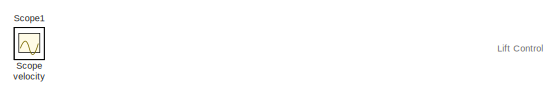
[diagram: root canvas - part 1/7, top left region]
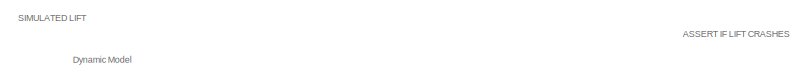
[diagram: root canvas - part 2/7, top right region]
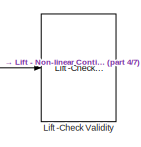
[diagram: root canvas - part 3/7, top right region]
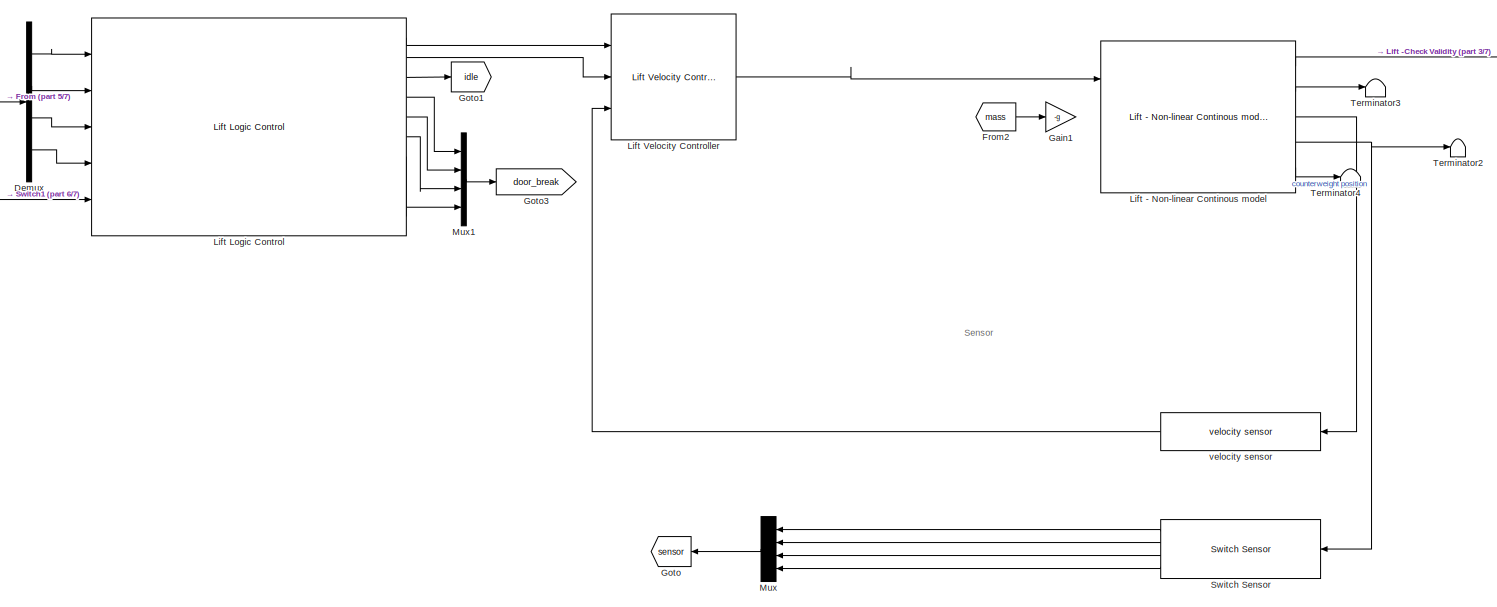
[diagram: root canvas - part 4/7, central region]
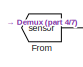
[diagram: root canvas - part 5/7, top left region]
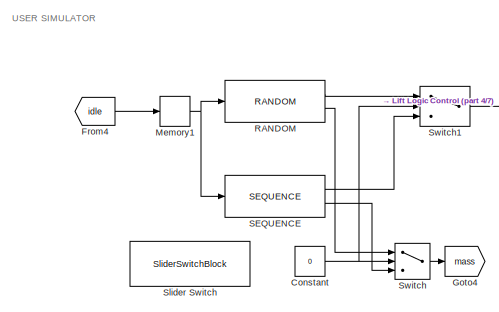
[diagram: root canvas - part 6/7, middle left region]
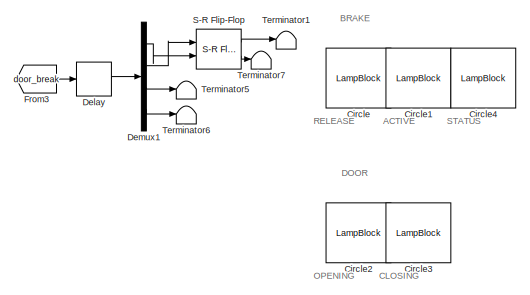
[diagram: root canvas - part 7/7, bottom right region]
MODEL slx_6e1b64482692
KIND model
CONFIG AbsTol = auto
CONFIG EnableMultiTasking = off
CONFIG FixedStep = auto
CONFIG MaxStep = auto
CONFIG MinStep = auto
CONFIG RelTol = 1e-3
CONFIG SampleTimeConstraint = Unconstrained
CONFIG SolverName = VariableStepAuto
CONFIG StartTime = 0.0
CONFIG StopTime = 600
BLOCK [LampBlock] Circle
  Icon = Circle
  LabelPosition = Hide
BLOCK [LampBlock] Circle1
  Icon = Circle
  LabelPosition = Hide
BLOCK [LampBlock] Circle2
  Icon = Circle
  LabelPosition = Hide
BLOCK [LampBlock] Circle3
  Icon = Circle
  LabelPosition = Hide
BLOCK [LampBlock] Circle4
  Icon = Circle
  LabelPosition = Hide
BLOCK [Constant] Constant
  Value = 0
BLOCK [Delay] Delay
  DelayLength = 20
  InputPortMap = u0
  Ports = [1, 1]
  SampleTime = Ts
BLOCK [Demux] Demux
  Ports = [1, 4]
BLOCK [Demux] Demux1
  Ports = [1, 4]
BLOCK [From] From
  GotoTag = sensor
BLOCK [From] From2
  GotoTag = mass
BLOCK [From] From3
  GotoTag = door_break
BLOCK [From] From4
  GotoTag = idle
BLOCK [Gain] Gain1
  Gain = -g
BLOCK [Goto] Goto
  GotoTag = sensor
  NameLocation = top
BLOCK [Goto] Goto1
  GotoTag = idle
BLOCK [Goto] Goto3
  GotoTag = door_break
BLOCK [Goto] Goto4
  GotoTag = mass
BLOCK [Reference] Lift - Non-linear Continous model  REF=LumpedParameterLiftModels/Lift - Non-linear Continous model
  Ports = [3, 5]
  SourceBlock = LumpedParameterLiftModels/Lift - Non-linear Continous model
BLOCK [Reference] Lift -Check Validity  REF=LumpedParameterLiftModels/Lift -Check Validity
  Ports = [1]
  SourceBlock = LumpedParameterLiftModels/Lift -Check Validity
BLOCK [Reference] Lift Logic Control  REF=LiftMotionControlLibrary/Lift Logic Control
  Ports = [5, 10]
  SourceBlock = LiftMotionControlLibrary/Lift Logic Control
BLOCK [Reference] Lift Velocity Controller  REF=LiftMotionControlLibrary/Lift Velocity Controller
  Ports = [3, 1]
  SourceBlock = LiftMotionControlLibrary/Lift Velocity Controller
  SourceType = SubSystem
BLOCK [Memory] Memory1
BLOCK [Mux] Mux
  DisplayOption = bar
  NameLocation = top
  Ports = [4, 1]
BLOCK [Mux] Mux1
  DisplayOption = bar
  Ports = [4, 1]
BLOCK [Reference] RANDOM   REF=LiftMotionControlLibrary/RANDOM
  Ports = [1, 2]
  SourceBlock = LiftMotionControlLibrary/RANDOM
  SourceType = SubSystem
BLOCK [Reference] S-R Flip-Flop  REF=simulink_extras/Flip Flops/S-R
Flip-Flop
  NameLocation = top
  Ports = [2, 2]
  SourceBlock = simulink_extras/Flip Flops/S-R\nFlip-Flop
  SourceProductBaseCode = SL
  SourceType = SRFlipFlop
BLOCK [Reference] SEQUENCE   REF=LiftMotionControlLibrary/SEQUENCE
  Ports = [1, 2]
  SourceBlock = LiftMotionControlLibrary/SEQUENCE
BLOCK [Scope] Scope
  Floating = off
  IOType = viewer
  NumInputPorts = 1
  Ports = []
  ScopeSpecificationString = Simulink.scopes.TimeScopeBlockCfg('CurrentConfiguration', extmgr.ConfigurationSet(extmgr.Configuration('Core','General UI',true),extmgr.Configuration('Core','Source UI',true),extmgr.Configuration('Sources','WiredSimulink',true,'DataLoggingVariableName','ScopeData1'),extmgr.Configuration('Visuals','Time Domain',true,'SerializedDisplays',{struct('MinYLimReal','-0.01447','MaxYLimReal','0.12977','YLab...<+2068ch>
BLOCK [Scope] Scope1
  Floating = off
  IOType = viewer
  NumInputPorts = 1
  Ports = []
  ScopeSpecificationString = Simulink.scopes.TimeScopeBlockCfg('CurrentConfiguration', extmgr.ConfigurationSet(extmgr.Configuration('Core','General UI',true),extmgr.Configuration('Core','Source UI',true),extmgr.Configuration('Sources','WiredSimulink',true,'DataLoggingVariableName','ScopeData1'),extmgr.Configuration('Visuals','Time Domain',true,'SerializedDisplays',{struct('MinYLimReal','-3238.16049','MaxYLimReal','359.79561',...<+1403ch>
BLOCK [SliderSwitchBlock] Slider Switch
BLOCK [Switch] Switch
  Criteria = u2 > Threshold
  InputSameDT = off
  SaturateOnIntegerOverflow = off
BLOCK [Reference] Switch Sensor  REF=LiftMotionControlLibrary/Switch Sensor
  NameLocation = top
  Ports = [1, 4]
  SourceBlock = LiftMotionControlLibrary/Switch Sensor
BLOCK [Switch] Switch1
  Criteria = u2 > Threshold
  InputSameDT = off
  SaturateOnIntegerOverflow = off
BLOCK [Terminator] Terminator1
BLOCK [Terminator] Terminator2
BLOCK [Terminator] Terminator3
BLOCK [Terminator] Terminator4
BLOCK [Terminator] Terminator5
BLOCK [Terminator] Terminator6
BLOCK [Terminator] Terminator7
BLOCK [Scope] velocity
  Floating = off
  IOType = viewer
  NumInputPorts = 1
  Ports = []
  ScopeSpecificationString = Simulink.scopes.TimeScopeBlockCfg('CurrentConfiguration', extmgr.ConfigurationSet(extmgr.Configuration('Core','General UI',true,'FigureColor',[1 1 1]),extmgr.Configuration('Core','Source UI',true),extmgr.Configuration('Sources','WiredSimulink',true,'DataLoggingVariableName','ScopeData3'),extmgr.Configuration('Visuals','Time Domain',true,'SerializedDisplays',{struct('MinYLimReal','-0.10122','MaxYLi...<+1746ch>
BLOCK [Reference] velocity sensor  REF=LiftMotionControlLibrary/velocity sensor
  NameLocation = top
  Ports = [1, 1]
  SourceBlock = LiftMotionControlLibrary/velocity sensor
  SourceType = SubSystem
ANNOTATION (root): BRAKE
ANNOTATION (root): DOOR
ANNOTATION (root): ACTIVE
ANNOTATION (root): ASSERT IF LIFT CRASHES
ANNOTATION (root): CLOSING
ANNOTATION (root): Dynamic Model
ANNOTATION (root): Lift Control
ANNOTATION (root): OPENING
ANNOTATION (root): RELEASE
ANNOTATION (root): SIMULATED LIFT
ANNOTATION (root): STATUS
ANNOTATION (root): Sensor
ANNOTATION (root): USER SIMULATOR
NET Constant:1 -> Switch1:2, Switch:2
LINE Delay:1 -> Demux1:1
LINE Demux1:1 -> S-R Flip-Flop:2
LINE Demux1:2 -> S-R Flip-Flop:1
LINE Demux1:3 -> Terminator5:1
LINE Demux1:4 -> Terminator6:1
LINE Demux:1 -> Lift Logic Control:1
LINE Demux:2 -> Lift Logic Control:2
LINE Demux:3 -> Lift Logic Control:3
LINE Demux:4 -> Lift Logic Control:4
LINE From2:1 -> Gain1:1
LINE From3:1 -> Delay:1
LINE From4:1 -> Memory1:1
LINE From:1 -> Demux:1
LINE Lift - Non-linear Continous model:1 -> Lift -Check Validity:1
LINE Lift - Non-linear Continous model:2 -> Terminator3:1
LINE Lift - Non-linear Continous model:3 -> velocity sensor:1
NET Lift - Non-linear Continous model:4 -> Switch Sensor:1, Terminator2:1
LINE Lift - Non-linear Continous model:5 -> Terminator4:1
LINE Lift Logic Control:1 -> Lift Velocity Controller:1
LINE Lift Logic Control:2 -> Lift Velocity Controller:2
LINE Lift Logic Control:3 -> Goto1:1
LINE Lift Logic Control:4 -> Mux1:1
LINE Lift Logic Control:5 -> Mux1:2
LINE Lift Logic Control:6 -> Mux1:3
LINE Lift Logic Control:7 -> Mux1:4
LINE Lift Velocity Controller:1 -> Lift - Non-linear Continous model:1
NET Memory1:1 -> RANDOM :1, SEQUENCE :1
LINE Mux1:1 -> Goto3:1
LINE Mux:1 -> Goto:1
LINE RANDOM :1 -> Switch1:1
LINE RANDOM :2 -> Switch:1
LINE S-R Flip-Flop:1 -> Terminator1:1
LINE S-R Flip-Flop:2 -> Terminator7:1
LINE SEQUENCE :1 -> Switch1:3
LINE SEQUENCE :2 -> Switch:3
LINE Switch Sensor:1 -> Mux:1
LINE Switch Sensor:2 -> Mux:2
LINE Switch Sensor:3 -> Mux:3
LINE Switch Sensor:4 -> Mux:4
LINE Switch1:1 -> Lift Logic Control:5
LINE Switch:1 -> Goto4:1
LINE velocity sensor:1 -> Lift Velocity Controller:3
note: NET lines group one-source signal fan-out (src -> all destinations, sorted); 1:1 wires keep LINE
